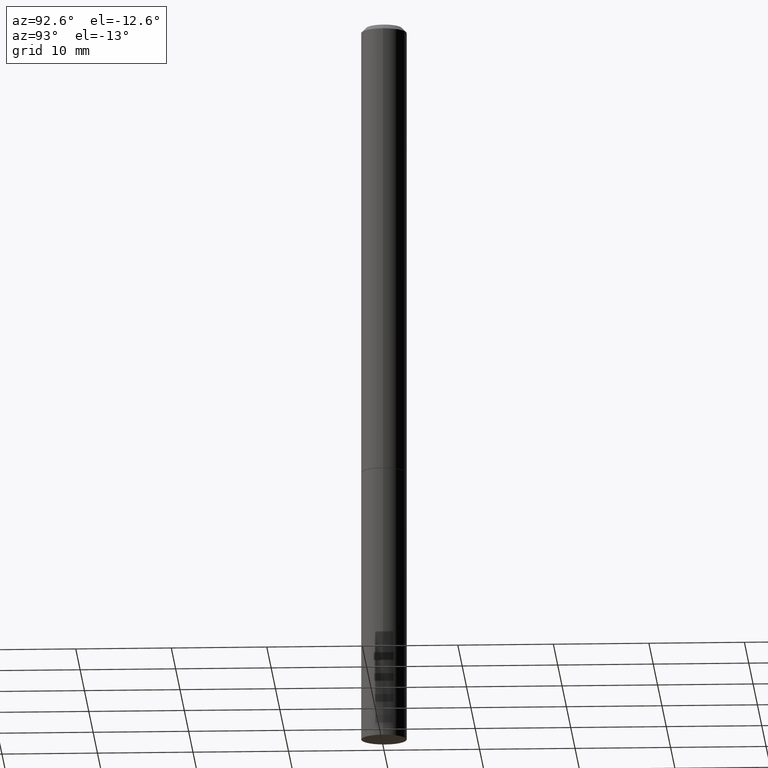
[diagram: clean part render]
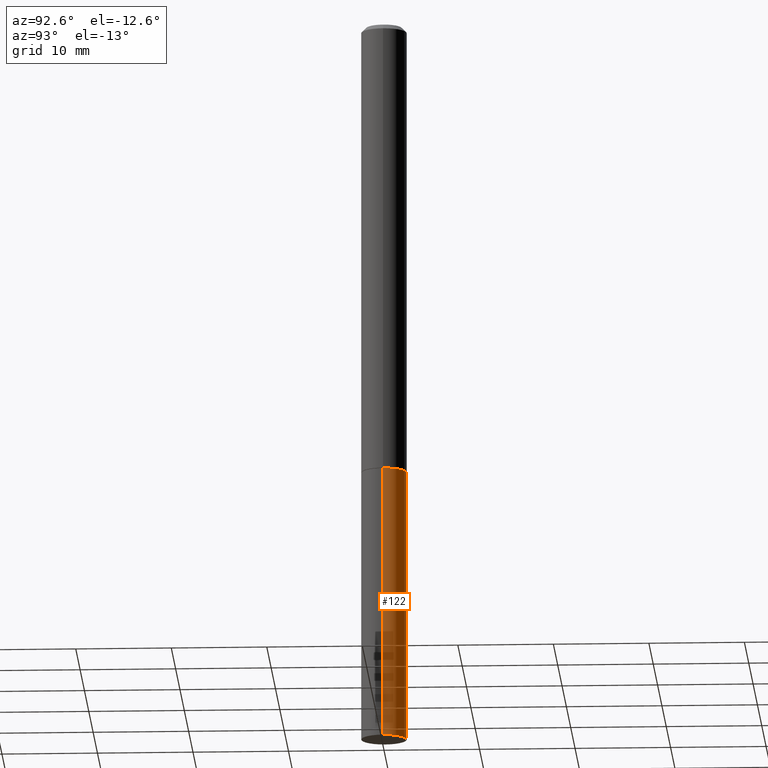
[diagram: same view with one face highlighted and labeled with its STEP entity id]
A machine part, auxiliary view. The second image highlights one B-rep face of the part: STEP entity #122.
In plain terms, the highlighted cylindrical surface (edge-blend (fillet) strip) has radius 2.3813 mm, axis along (-0, 0, 1).
Its self-contained STEP definition (entity closure, byte-faithful):
#2 = DIRECTION ( 'NONE',  ( -2.445468806185136597E-29, 3.491481338843145583E-15, 1.000000000000000000 ) ) ;
#4 = VECTOR ( 'NONE', #274, 39.37007874015748143 ) ;
#8 = DIRECTION ( 'NONE',  ( -2.445468806185136597E-29, 3.491481338843145583E-15, 1.000000000000000000 ) ) ;
#15 = EDGE_LOOP ( 'NONE', ( #318, #246, #219, #293 ) ) ;
#22 = CARTESIAN_POINT ( 'NONE',  ( 0.09375000000000001388, -6.546527510330875041E-16, 4.571415727308690506E-30 ) ) ;
#33 = DIRECTION ( 'NONE',  ( -2.445468806185136597E-29, 3.491481338843145583E-15, 1.000000000000000000 ) ) ;
#48 = AXIS2_PLACEMENT_3D ( 'NONE', #385, #33, #377 ) ;
#59 = EDGE_CURVE ( 'NONE', #358, #302, #242, .T. ) ;
#63 = DIRECTION ( 'NONE',  ( 1.000000000000000000, -6.982962677686261189E-15, 0.000000000000000000 ) ) ;
#81 = CARTESIAN_POINT ( 'NONE',  ( 0.09374999999999984734, -1.111761570382051902E-14, -3.000000000000000444 ) ) ;
#95 = LINE ( 'NONE', #251, #198 ) ;
#96 = DIRECTION ( 'NONE',  ( 1.000000000000000000, -6.982962677686265922E-15, 4.876176775795935793E-29 ) ) ;
#100 = EDGE_CURVE ( 'NONE', #263, #115, #95, .T. ) ;
#115 = VERTEX_POINT ( 'NONE', #387 ) ;
#122 = ADVANCED_FACE ( 'NONE', ( #341 ), #366, .T. ) ;
#159 = EDGE_CURVE ( 'NONE', #302, #115, #380, .T. ) ;
#183 = CARTESIAN_POINT ( 'NONE',  ( -0.09374999999999984734, -9.819791265496351216E-15, -3.000000000000000444 ) ) ;
#188 = AXIS2_PLACEMENT_3D ( 'NONE', #286, #8, #63 ) ;
#198 = VECTOR ( 'NONE', #282, 39.37007874015748143 ) ;
#219 = ORIENTED_EDGE ( 'NONE', *, *, #159, .F. ) ;
#242 = LINE ( 'NONE', #22, #4 ) ;
#246 = ORIENTED_EDGE ( 'NONE', *, *, #100, .T. ) ;
#251 = CARTESIAN_POINT ( 'NONE',  ( -0.09375000000000001388, 6.661338147750940229E-16, -4.611501647113973995E-30 ) ) ;
#263 = VERTEX_POINT ( 'NONE', #183 ) ;
#274 = DIRECTION ( 'NONE',  ( -2.445468806185136877E-29, 3.491481338843145188E-15, 1.000000000000000000 ) ) ;
#276 = EDGE_CURVE ( 'NONE', #358, #263, #313, .T. ) ;
#282 = DIRECTION ( 'NONE',  ( -2.445468806185136877E-29, 3.491481338843145188E-15, 1.000000000000000000 ) ) ;
#284 = CARTESIAN_POINT ( 'NONE',  ( 0.000000000000000000, 0.000000000000000000, 0.000000000000000000 ) ) ;
#286 = CARTESIAN_POINT ( 'NONE',  ( 4.585254011597131119E-29, -6.546527510330898707E-15, -1.875000000000000000 ) ) ;
#293 = ORIENTED_EDGE ( 'NONE', *, *, #59, .F. ) ;
#298 = CARTESIAN_POINT ( 'NONE',  ( 0.09375000000000001388, -7.201180261363985422E-15, -1.875000000000000000 ) ) ;
#302 = VERTEX_POINT ( 'NONE', #298 ) ;
#312 = AXIS2_PLACEMENT_3D ( 'NONE', #284, #2, #96 ) ;
#313 = CIRCLE ( 'NONE', #48, 0.09375000000000001388 ) ;
#318 = ORIENTED_EDGE ( 'NONE', *, *, #276, .T. ) ;
#341 = FACE_OUTER_BOUND ( 'NONE', #15, .T. ) ;
#358 = VERTEX_POINT ( 'NONE', #81 ) ;
#366 = CYLINDRICAL_SURFACE ( 'NONE', #312, 0.09375000000000001388 ) ;
#377 = DIRECTION ( 'NONE',  ( 1.000000000000000000, -6.982962677686261189E-15, 0.000000000000000000 ) ) ;
#380 = CIRCLE ( 'NONE', #188, 0.09375000000000001388 ) ;
#385 = CARTESIAN_POINT ( 'NONE',  ( 7.336406418555409790E-29, -1.047444401652943635E-14, -3.000000000000000444 ) ) ;
#387 = CARTESIAN_POINT ( 'NONE',  ( -0.09375000000000001388, -7.844351948655072817E-15, -1.875000000000000000 ) ) ;